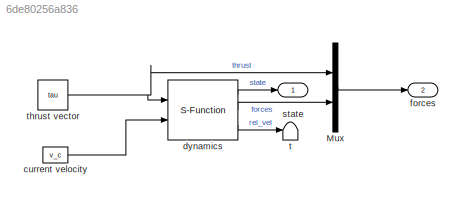
MODEL slx_6de80256a836
KIND model
CONFIG AbsTol = auto
CONFIG EnableMultiTasking = off
CONFIG FixedStep = mdl.tStep
CONFIG MaxStep = auto
CONFIG MinStep = auto
CONFIG RelTol = 1e-3
CONFIG SampleTimeConstraint = Unconstrained
CONFIG Solver = ode4
CONFIG SolverName = ode4
CONFIG StartTime = 0.0
CONFIG StopTime = 10.0
BLOCK [Mux] Mux
  DisplayOption = bar
  Inputs = [6,18]
  Ports = [2, 1]
BLOCK [Constant] current velocity
  Value = v_c
BLOCK [S-Function] dynamics
  EnableBusSupport = off
  FunctionName = uuv_dynamics
  Parameters = rov.weight,rov.buoyancy,rov.G,rov.B,ics,rov.inv_mass',rov.M_A',rov.M_RB',rov.D_L',rov.D_q'
  Ports = [2, 3]
  SFcnIsStateOwnerBlock = off
  SFunctionDeploymentMode = off
BLOCK [Outport] forces
  IconDisplay = Port number
  Port = 2
BLOCK [Outport] state
  IconDisplay = Port number
BLOCK [Terminator] t
BLOCK [Constant] thrust vector
  Value = tau
LINE Mux:1 -> forces:1
LINE current velocity:1 -> dynamics:2
LINE dynamics:1 -> state:1
LINE dynamics:2 -> Mux:2
LINE dynamics:3 -> t:1
NET thrust vector:1 -> Mux:1, dynamics:1
note: NET lines group one-source signal fan-out (src -> all destinations, sorted); 1:1 wires keep LINE
